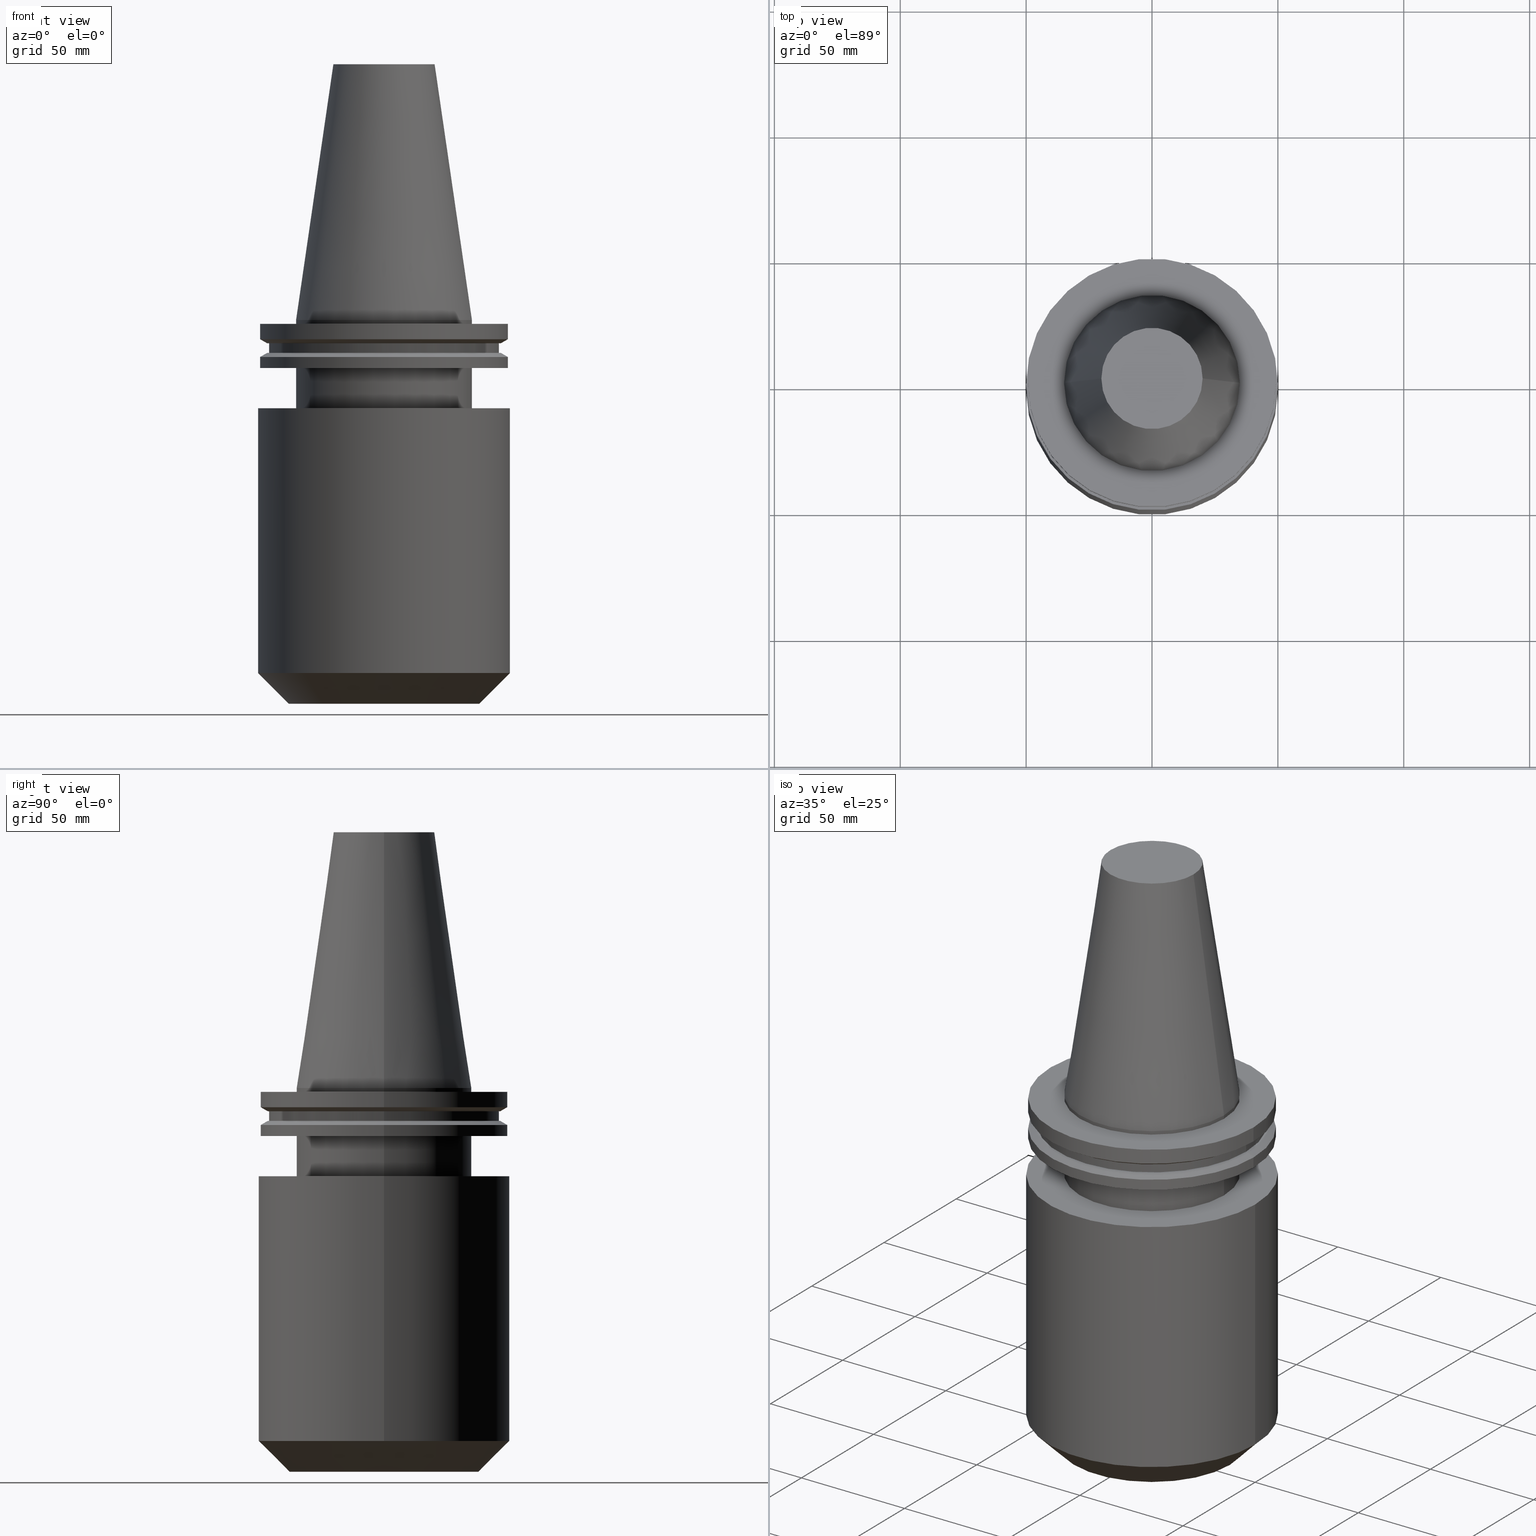
[diagram: canonical four-view strip — front | top / right | iso, engineering-drawing reading convention]
A machine part, canonical four-view strip (front | top / right | iso — engineering-drawing reading convention). The complete STEP part file that produces these views, byte-faithful:
ISO-10303-21;
HEADER;
FILE_DESCRIPTION (( 'STEP AP203' ),
    '1' );
FILE_NAME ('BCV50-EM2_500-6.stp',
    '2022-03-03T16:49:13',
    ( '' ),
    ( '' ),
    'SwSTEP 2.0',
    'SolidWorks 2021',
    '' );
FILE_SCHEMA (( 'CONFIG_CONTROL_DESIGN' ));
ENDSEC;

DATA;
#1 = ORIENTED_EDGE ( 'NONE', *, *, #408, .F. ) ;
#2 = CC_DESIGN_DATE_AND_TIME_ASSIGNMENT ( #523, #399, ( #538 ) ) ;
#3 = DIRECTION ( 'NONE',  ( 1.000000000000000000, 0.000000000000000000, 0.000000000000000000 ) ) ;
#4 = CARTESIAN_POINT ( 'NONE',  ( 0.000000000000000000, 0.000000000000000000, 101.5999999999999943 ) ) ;
#5 = APPROVAL_ROLE ( '' ) ;
#6 = EDGE_CURVE ( 'NONE', #101, #288, #314, .T. ) ;
#7 = DIRECTION ( 'NONE',  ( 1.000000000000000000, 0.000000000000000000, 0.000000000000000000 ) ) ;
#8 = AXIS2_PLACEMENT_3D ( 'NONE', #68, #146, #597 ) ;
#9 = ADVANCED_FACE ( 'NONE', ( #178, #435 ), #440, .F. ) ;
#10 = FACE_OUTER_BOUND ( 'NONE', #398, .T. ) ;
#11 = ORIENTED_EDGE ( 'NONE', *, *, #341, .T. ) ;
#12 = PERSON_AND_ORGANIZATION ( #529, #256 ) ;
#13 = LINE ( 'NONE', #524, #850 ) ;
#14 = CC_DESIGN_DATE_AND_TIME_ASSIGNMENT ( #278, #539, ( #550 ) ) ;
#15 = EDGE_LOOP ( 'NONE', ( #480, #203 ) ) ;
#16 = COORDINATED_UNIVERSAL_TIME_OFFSET ( 6, 0, .BEHIND. ) ;
#17 = DIRECTION ( 'NONE',  ( -1.000000000000000000, 0.000000000000000000, 0.000000000000000000 ) ) ;
#18 = VERTEX_POINT ( 'NONE', #847 ) ;
#19 = ADVANCED_FACE ( 'NONE', ( #235 ), #34, .T. ) ;
#20 = DIRECTION ( 'NONE',  ( -0.000000000000000000, -0.000000000000000000, 1.000000000000000000 ) ) ;
#21 = CIRCLE ( 'NONE', #547, 34.92499999999999005 ) ;
#22 = AXIS2_PLACEMENT_3D ( 'NONE', #792, #74, #729 ) ;
#23 = ORIENTED_EDGE ( 'NONE', *, *, #627, .F. ) ;
#24 = ORIENTED_EDGE ( 'NONE', *, *, #826, .F. ) ;
#25 = CC_DESIGN_APPROVAL ( #551, ( #550 ) ) ;
#26 = CARTESIAN_POINT ( 'NONE',  ( 0.000000000000000000, 0.000000000000000000, 101.5999999999999943 ) ) ;
#27 = ORIENTED_EDGE ( 'NONE', *, *, #627, .T. ) ;
#28 = ORIENTED_EDGE ( 'NONE', *, *, #431, .F. ) ;
#29 = EDGE_CURVE ( 'NONE', #647, #828, #476, .T. ) ;
#30 = CARTESIAN_POINT ( 'NONE',  ( 0.000000000000000000, 0.000000000000000000, -13.05499999999999794 ) ) ;
#31 = VERTEX_POINT ( 'NONE', #128 ) ;
#32 = DIRECTION ( 'NONE',  ( 1.000000000000000000, 0.000000000000000000, 0.000000000000000000 ) ) ;
#33 = ADVANCED_FACE ( 'NONE', ( #574, #53 ), #831, .F. ) ;
#34 = CONICAL_SURFACE ( 'NONE', #750, 46.43919780457007818, 1.047197551196575205 ) ;
#35 = ORIENTED_EDGE ( 'NONE', *, *, #786, .T. ) ;
#36 = ORIENTED_EDGE ( 'NONE', *, *, #602, .F. ) ;
#37 = AXIS2_PLACEMENT_3D ( 'NONE', #543, #298, #818 ) ;
#38 = FACE_OUTER_BOUND ( 'NONE', #743, .T. ) ;
#39 = ORIENTED_EDGE ( 'NONE', *, *, #73, .T. ) ;
#40 = CARTESIAN_POINT ( 'NONE',  ( 45.64500000000000313, 0.000000000000000000, -13.05499999999999794 ) ) ;
#41 = ORIENTED_EDGE ( 'NONE', *, *, #249, .T. ) ;
#42 = DIRECTION ( 'NONE',  ( 0.000000000000000000, 0.000000000000000000, -1.000000000000000000 ) ) ;
#43 = ADVANCED_FACE ( 'NONE', ( #632 ), #488, .T. ) ;
#44 = DIRECTION ( 'NONE',  ( 0.000000000000000000, 0.000000000000000000, -1.000000000000000000 ) ) ;
#45 = FACE_OUTER_BOUND ( 'NONE', #814, .T. ) ;
#46 = DIRECTION ( 'NONE',  ( 1.000000000000000000, 0.000000000000000000, 0.000000000000000000 ) ) ;
#47 = CLOSED_SHELL ( 'NONE', ( #220, #365, #287, #790, #717, #19, #319, #43, #586, #243, #643, #337, #154, #616, #838, #143, #573, #215, #645, #765, #842, #370, #360, #139, #772, #377, #33, #156, #9, #505 ) ) ;
#48 = EDGE_CURVE ( 'NONE', #131, #289, #486, .T. ) ;
#49 = CIRCLE ( 'NONE', #822, 20.10819343178871321 ) ;
#50 = CIRCLE ( 'NONE', #152, 45.64500000000000313 ) ;
#51 = CARTESIAN_POINT ( 'NONE',  ( 0.000000000000000000, 0.000000000000000000, 101.5999999999999943 ) ) ;
#52 = DIRECTION ( 'NONE',  ( 1.000000000000000000, 0.000000000000000000, 0.000000000000000000 ) ) ;
#53 = FACE_BOUND ( 'NONE', #621, .T. ) ;
#54 = DIRECTION ( 'NONE',  ( -0.000000000000000000, -0.000000000000000000, 1.000000000000000000 ) ) ;
#55 = CARTESIAN_POINT ( 'NONE',  ( 0.000000000000000000, 0.000000000000000000, 0.000000000000000000 ) ) ;
#56 = VERTEX_POINT ( 'NONE', #375 ) ;
#57 = CARTESIAN_POINT ( 'NONE',  ( 0.000000000000000000, 0.000000000000000000, 0.000000000000000000 ) ) ;
#58 = DIRECTION ( 'NONE',  ( -0.000000000000000000, -0.000000000000000000, 1.000000000000000000 ) ) ;
#59 = EDGE_CURVE ( 'NONE', #760, #170, #780, .T. ) ;
#60 = CARTESIAN_POINT ( 'NONE',  ( -34.92499999999999005, 4.277078946022130098E-15, -1.499999999999987566 ) ) ;
#61 = VERTEX_POINT ( 'NONE', #504 ) ;
#62 = AXIS2_PLACEMENT_3D ( 'NONE', #372, #490, #252 ) ;
#63 = CARTESIAN_POINT ( 'NONE',  ( 0.000000000000000000, 0.000000000000000000, -152.4000000000000057 ) ) ;
#64 = APPROVAL_PERSON_ORGANIZATION ( #589, #701, #5 ) ;
#65 = DIRECTION ( 'NONE',  ( -0.000000000000000000, -0.000000000000000000, 1.000000000000000000 ) ) ;
#66 = ORIENTED_EDGE ( 'NONE', *, *, #400, .F. ) ;
#67 = CALENDAR_DATE ( 2022, 3, 3 ) ;
#68 = CARTESIAN_POINT ( 'NONE',  ( 0.000000000000000000, 0.000000000000000000, -152.4000000000000057 ) ) ;
#69 = CARTESIAN_POINT ( 'NONE',  ( 0.000000000000000000, 20.10819343178871321, 101.5999999999999943 ) ) ;
#70 = VERTEX_POINT ( 'NONE', #302 ) ;
#71 = EDGE_CURVE ( 'NONE', #332, #101, #515, .T. ) ;
#72 = PERSON_AND_ORGANIZATION_ROLE ( 'creator' ) ;
#73 = EDGE_CURVE ( 'NONE', #674, #31, #623, .T. ) ;
#74 = DIRECTION ( 'NONE',  ( -0.000000000000000000, -0.000000000000000000, 1.000000000000000000 ) ) ;
#75 = DIRECTION ( 'NONE',  ( 1.000000000000000000, 0.000000000000000000, 0.000000000000000000 ) ) ;
#76 = SECURITY_CLASSIFICATION_LEVEL ( 'unclassified' ) ;
#77 = CIRCLE ( 'NONE', #318, 49.21499999999998920 ) ;
#78 = DIRECTION ( 'NONE',  ( -0.000000000000000000, -0.000000000000000000, 1.000000000000000000 ) ) ;
#79 = AXIS2_PLACEMENT_3D ( 'NONE', #482, #540, #32 ) ;
#80 = AXIS2_PLACEMENT_3D ( 'NONE', #429, #315, #559 ) ;
#81 = CARTESIAN_POINT ( 'NONE',  ( 0.000000000000000000, 0.000000000000000000, -13.05499999999999794 ) ) ;
#82 = ORIENTED_EDGE ( 'NONE', *, *, #673, .F. ) ;
#83 = CARTESIAN_POINT ( 'NONE',  ( 0.000000000000000000, 0.000000000000000000, -14.65761014474876944 ) ) ;
#84 = ORIENTED_EDGE ( 'NONE', *, *, #531, .T. ) ;
#85 = DIRECTION ( 'NONE',  ( -0.000000000000000000, -0.000000000000000000, 1.000000000000000000 ) ) ;
#86 = ORIENTED_EDGE ( 'NONE', *, *, #71, .T. ) ;
#87 = ORIENTED_EDGE ( 'NONE', *, *, #386, .T. ) ;
#88 = CARTESIAN_POINT ( 'NONE',  ( 0.000000000000000000, 0.000000000000000000, -140.2000000000000171 ) ) ;
#89 = AXIS2_PLACEMENT_3D ( 'NONE', #4, #202, #794 ) ;
#90 = CIRCLE ( 'NONE', #22, 49.21499999999998920 ) ;
#91 = EDGE_CURVE ( 'NONE', #552, #546, #191, .T. ) ;
#92 = AXIS2_PLACEMENT_3D ( 'NONE', #51, #193, #629 ) ;
#93 = ORIENTED_EDGE ( 'NONE', *, *, #29, .F. ) ;
#94 = VERTEX_POINT ( 'NONE', #60 ) ;
#95 = CARTESIAN_POINT ( 'NONE',  ( 0.000000000000000000, 0.000000000000000000, 0.000000000000000000 ) ) ;
#96 = ORIENTED_EDGE ( 'NONE', *, *, #48, .T. ) ;
#97 = ORIENTED_EDGE ( 'NONE', *, *, #746, .F. ) ;
#98 = EDGE_CURVE ( 'NONE', #757, #94, #21, .T. ) ;
#99 = DIRECTION ( 'NONE',  ( -0.000000000000000000, -0.000000000000000000, 1.000000000000000000 ) ) ;
#100 = EDGE_CURVE ( 'NONE', #18, #418, #173, .T. ) ;
#101 = VERTEX_POINT ( 'NONE', #147 ) ;
#102 = ORIENTED_EDGE ( 'NONE', *, *, #676, .F. ) ;
#103 = EDGE_CURVE ( 'NONE', #785, #828, #323, .T. ) ;
#104 = FACE_OUTER_BOUND ( 'NONE', #773, .T. ) ;
#105 = ORIENTED_EDGE ( 'NONE', *, *, #468, .T. ) ;
#106 = ORIENTED_EDGE ( 'NONE', *, *, #656, .T. ) ;
#107 = AXIS2_PLACEMENT_3D ( 'NONE', #688, #99, #286 ) ;
#108 = AXIS2_PLACEMENT_3D ( 'NONE', #30, #554, #224 ) ;
#109 = DIRECTION ( 'NONE',  ( -0.000000000000000000, -0.000000000000000000, 1.000000000000000000 ) ) ;
#110 = EDGE_CURVE ( 'NONE', #289, #157, #268, .T. ) ;
#111 = VERTEX_POINT ( 'NONE', #259 ) ;
#112 = CARTESIAN_POINT ( 'NONE',  ( 34.92499999999999005, 0.000000000000000000, -1.499999999999987566 ) ) ;
#113 = CARTESIAN_POINT ( 'NONE',  ( 0.000000000000000000, 0.000000000000000000, 0.000000000000000000 ) ) ;
#114 = ORIENTED_EDGE ( 'NONE', *, *, #514, .T. ) ;
#115 = ORIENTED_EDGE ( 'NONE', *, *, #650, .F. ) ;
#116 = FACE_OUTER_BOUND ( 'NONE', #661, .T. ) ;
#117 = DIRECTION ( 'NONE',  ( -1.000000000000000000, 0.000000000000000000, 0.000000000000000000 ) ) ;
#118 = DIRECTION ( 'NONE',  ( -0.000000000000000000, -0.000000000000000000, 1.000000000000000000 ) ) ;
#119 = VECTOR ( 'NONE', #700, 1000.000000000000000 ) ;
#120 = VECTOR ( 'NONE', #78, 1000.000000000000000 ) ;
#121 = AXIS2_PLACEMENT_3D ( 'NONE', #172, #471, #825 ) ;
#122 = CARTESIAN_POINT ( 'NONE',  ( -34.92499999999999716, 4.277078946022130887E-15, 101.5999999999999943 ) ) ;
#123 = DIRECTION ( 'NONE',  ( 1.000000000000000000, 0.000000000000000000, 0.000000000000000000 ) ) ;
#124 = EDGE_LOOP ( 'NONE', ( #344, #218, #409, #97 ) ) ;
#125 = DIRECTION ( 'NONE',  ( 0.000000000000000000, -0.000000000000000000, 1.000000000000000000 ) ) ;
#126 = DIRECTION ( 'NONE',  ( -0.1443082272672999988, 0.000000000000000000, -0.9895327864921755756 ) ) ;
#127 = CARTESIAN_POINT ( 'NONE',  ( 0.000000000000000000, 0.000000000000000000, 0.000000000000000000 ) ) ;
#128 = CARTESIAN_POINT ( 'NONE',  ( -49.21499999999999631, 6.027099222003697826E-15, -1.499999999999987566 ) ) ;
#129 = CARTESIAN_POINT ( 'NONE',  ( 0.000000000000000000, 0.000000000000000000, -9.204999999999991189 ) ) ;
#130 = FACE_OUTER_BOUND ( 'NONE', #448, .T. ) ;
#131 = VERTEX_POINT ( 'NONE', #397 ) ;
#132 = AXIS2_PLACEMENT_3D ( 'NONE', #852, #584, #273 ) ;
#133 = APPROVAL_ROLE ( '' ) ;
#134 = VECTOR ( 'NONE', #500, 1000.000000000000114 ) ;
#135 = AXIS2_PLACEMENT_3D ( 'NONE', #127, #190, #443 ) ;
#136 = CARTESIAN_POINT ( 'NONE',  ( 34.92499999999999005, 4.277078946022130098E-15, 0.000000000000000000 ) ) ;
#137 = AXIS2_PLACEMENT_3D ( 'NONE', #436, #44, #706 ) ;
#138 = CARTESIAN_POINT ( 'NONE',  ( 34.92499999999999716, 0.000000000000000000, -35.04999999999999716 ) ) ;
#139 = ADVANCED_FACE ( 'NONE', ( #130 ), #266, .T. ) ;
#140 = ORIENTED_EDGE ( 'NONE', *, *, #98, .F. ) ;
#141 = DIRECTION ( 'NONE',  ( -0.000000000000000000, -0.000000000000000000, 1.000000000000000000 ) ) ;
#142 = CARTESIAN_POINT ( 'NONE',  ( 45.64500000000000313, 0.000000000000000000, -9.204999999999991189 ) ) ;
#143 = ADVANCED_FACE ( 'NONE', ( #459 ), #387, .T. ) ;
#144 = ORIENTED_EDGE ( 'NONE', *, *, #460, .F. ) ;
#145 = PERSON_AND_ORGANIZATION_ROLE ( 'design_supplier' ) ;
#146 = DIRECTION ( 'NONE',  ( -0.000000000000000000, -0.000000000000000000, 1.000000000000000000 ) ) ;
#147 = CARTESIAN_POINT ( 'NONE',  ( 46.43919780457007818, 5.857130358318725715E-15, -13.05499999999999794 ) ) ;
#148 = ORIENTED_EDGE ( 'NONE', *, *, #676, .T. ) ;
#149 = CALENDAR_DATE ( 2022, 3, 3 ) ;
#150 = CARTESIAN_POINT ( 'NONE',  ( 34.92499999999999005, 0.000000000000000000, 101.5999999999999943 ) ) ;
#151 = AXIS2_PLACEMENT_3D ( 'NONE', #815, #421, #356 ) ;
#152 = AXIS2_PLACEMENT_3D ( 'NONE', #535, #680, #611 ) ;
#153 = EDGE_LOOP ( 'NONE', ( #618, #310 ) ) ;
#154 = ADVANCED_FACE ( 'NONE', ( #855 ), #507, .F. ) ;
#155 = CARTESIAN_POINT ( 'NONE',  ( -45.64500000000000313, 5.589900314708094957E-15, 101.5999999999999943 ) ) ;
#156 = ADVANCED_FACE ( 'NONE', ( #195 ), #205, .F. ) ;
#157 = VERTEX_POINT ( 'NONE', #579 ) ;
#158 = DIRECTION ( 'NONE',  ( -0.000000000000000000, -0.000000000000000000, 1.000000000000000000 ) ) ;
#159 = VERTEX_POINT ( 'NONE', #450 ) ;
#160 = ORIENTED_EDGE ( 'NONE', *, *, #73, .F. ) ;
#161 = CALENDAR_DATE ( 2022, 3, 3 ) ;
#162 = FACE_OUTER_BOUND ( 'NONE', #472, .T. ) ;
#163 = AXIS2_PLACEMENT_3D ( 'NONE', #307, #705, #833 ) ;
#164 = AXIS2_PLACEMENT_3D ( 'NONE', #510, #210, #590 ) ;
#165 = AXIS2_PLACEMENT_3D ( 'NONE', #57, #189, #257 ) ;
#166 = ORIENTED_EDGE ( 'NONE', *, *, #71, .F. ) ;
#167 = EDGE_LOOP ( 'NONE', ( #115, #714 ) ) ;
#168 = DIRECTION ( 'NONE',  ( -0.000000000000000000, -0.000000000000000000, 1.000000000000000000 ) ) ;
#169 = ORIENTED_EDGE ( 'NONE', *, *, #489, .T. ) ;
#170 = VERTEX_POINT ( 'NONE', #142 ) ;
#171 = CARTESIAN_POINT ( 'NONE',  ( -45.64500000000000313, 5.589900314708094957E-15, -13.05499999999999794 ) ) ;
#172 = CARTESIAN_POINT ( 'NONE',  ( 0.000000000000000000, 0.000000000000000000, 101.5999999999999943 ) ) ;
#173 = CIRCLE ( 'NONE', #819, 34.92499999999999716 ) ;
#174 = DIRECTION ( 'NONE',  ( 1.000000000000000000, 0.000000000000000000, 0.000000000000000000 ) ) ;
#175 = CIRCLE ( 'NONE', #135, 34.92499999999999005 ) ;
#176 = LINE ( 'NONE', #699, #376 ) ;
#177 = DIRECTION ( 'NONE',  ( -0.000000000000000000, -0.000000000000000000, 1.000000000000000000 ) ) ;
#178 = FACE_BOUND ( 'NONE', #15, .T. ) ;
#179 = DIRECTION ( 'NONE',  ( 0.000000000000000000, 0.000000000000000000, -1.000000000000000000 ) ) ;
#180 = DIRECTION ( 'NONE',  ( 1.000000000000000000, 0.000000000000000000, 0.000000000000000000 ) ) ;
#181 = CC_DESIGN_PERSON_AND_ORGANIZATION_ASSIGNMENT ( #732, #145, ( #724 ) ) ;
#182 = EDGE_LOOP ( 'NONE', ( #727, #739, #679, #233 ) ) ;
#183 = CYLINDRICAL_SURFACE ( 'NONE', #165, 49.99999999999999289 ) ;
#184 = DIRECTION ( 'NONE',  ( -0.000000000000000000, -0.000000000000000000, 1.000000000000000000 ) ) ;
#185 = ORIENTED_EDGE ( 'NONE', *, *, #684, .T. ) ;
#186 = EDGE_CURVE ( 'NONE', #760, #689, #849, .T. ) ;
#187 = AXIS2_PLACEMENT_3D ( 'NONE', #292, #158, #685 ) ;
#188 = APPROVAL_PERSON_ORGANIZATION ( #223, #551, #758 ) ;
#189 = DIRECTION ( 'NONE',  ( -0.000000000000000000, -0.000000000000000000, 1.000000000000000000 ) ) ;
#190 = DIRECTION ( 'NONE',  ( -0.000000000000000000, -0.000000000000000000, 1.000000000000000000 ) ) ;
#191 = LINE ( 'NONE', #444, #560 ) ;
#192 = EDGE_CURVE ( 'NONE', #536, #157, #788, .T. ) ;
#193 = DIRECTION ( 'NONE',  ( -0.000000000000000000, -0.000000000000000000, 1.000000000000000000 ) ) ;
#194 = DIRECTION ( 'NONE',  ( -0.000000000000000000, -0.000000000000000000, 1.000000000000000000 ) ) ;
#195 = FACE_OUTER_BOUND ( 'NONE', #585, .T. ) ;
#196 = ORIENTED_EDGE ( 'NONE', *, *, #341, .F. ) ;
#197 = LINE ( 'NONE', #520, #491 ) ;
#198 = DIRECTION ( 'NONE',  ( 1.000000000000000000, 0.000000000000000000, 0.000000000000000000 ) ) ;
#199 = APPLICATION_PROTOCOL_DEFINITION ( 'international standard', 'config_control_design', 1994, #677 ) ;
#200 = AXIS2_PLACEMENT_3D ( 'NONE', #382, #58, #716 ) ;
#201 = CARTESIAN_POINT ( 'NONE',  ( -34.92499999999999716, 4.277078946022130887E-15, -19.04999999999999716 ) ) ;
#202 = DIRECTION ( 'NONE',  ( -0.000000000000000000, -0.000000000000000000, 1.000000000000000000 ) ) ;
#203 = ORIENTED_EDGE ( 'NONE', *, *, #755, .T. ) ;
#204 = DIRECTION ( 'NONE',  ( -0.000000000000000000, -0.000000000000000000, 1.000000000000000000 ) ) ;
#205 = CYLINDRICAL_SURFACE ( 'NONE', #606, 31.74999999999999289 ) ;
#206 = PERSON_AND_ORGANIZATION ( #529, #256 ) ;
#207 = DIRECTION ( 'NONE',  ( 0.7071067811865482389, 0.000000000000000000, 0.7071067811865469066 ) ) ;
#208 = ORIENTED_EDGE ( 'NONE', *, *, #400, .T. ) ;
#209 = AXIS2_PLACEMENT_3D ( 'NONE', #783, #177, #52 ) ;
#210 = DIRECTION ( 'NONE',  ( -0.000000000000000000, -0.000000000000000000, 1.000000000000000000 ) ) ;
#211 = AXIS2_PLACEMENT_3D ( 'NONE', #63, #258, #843 ) ;
#212 = AXIS2_PLACEMENT_3D ( 'NONE', #620, #549, #216 ) ;
#213 = VERTEX_POINT ( 'NONE', #138 ) ;
#214 = ORIENTED_EDGE ( 'NONE', *, *, #572, .T. ) ;
#215 = ADVANCED_FACE ( 'NONE', ( #317, #10 ), #592, .F. ) ;
#216 = DIRECTION ( 'NONE',  ( 1.000000000000000000, 0.000000000000000000, 0.000000000000000000 ) ) ;
#217 = ORIENTED_EDGE ( 'NONE', *, *, #489, .F. ) ;
#218 = ORIENTED_EDGE ( 'NONE', *, *, #6, .T. ) ;
#219 = DIRECTION ( 'NONE',  ( -0.000000000000000000, -0.000000000000000000, 1.000000000000000000 ) ) ;
#220 = ADVANCED_FACE ( 'NONE', ( #327 ), #799, .F. ) ;
#221 = ORIENTED_EDGE ( 'NONE', *, *, #755, .F. ) ;
#222 = ORIENTED_EDGE ( 'NONE', *, *, #544, .F. ) ;
#223 = PERSON_AND_ORGANIZATION ( #529, #256 ) ;
#224 = DIRECTION ( 'NONE',  ( 1.000000000000000000, 0.000000000000000000, 0.000000000000000000 ) ) ;
#225 = AXIS2_PLACEMENT_3D ( 'NONE', #113, #708, #123 ) ;
#226 = CC_DESIGN_PERSON_AND_ORGANIZATION_ASSIGNMENT ( #658, #72, ( #538 ) ) ;
#227 = AXIS2_PLACEMENT_3D ( 'NONE', #449, #204, #666 ) ;
#228 = CONICAL_SURFACE ( 'NONE', #441, 46.43919780457007818, 1.047197551196575205 ) ;
#229 = EDGE_LOOP ( 'NONE', ( #232, #594, #41, #291 ) ) ;
#230 = EDGE_LOOP ( 'NONE', ( #28, #105, #324, #217 ) ) ;
#231 = CARTESIAN_POINT ( 'NONE',  ( 49.21500000000000341, 0.000000000000000000, -7.602389855251287187 ) ) ;
#232 = ORIENTED_EDGE ( 'NONE', *, *, #423, .F. ) ;
#233 = ORIENTED_EDGE ( 'NONE', *, *, #249, .F. ) ;
#234 = CARTESIAN_POINT ( 'NONE',  ( 0.000000000000000000, 0.000000000000000000, -19.04999999999999716 ) ) ;
#235 = FACE_OUTER_BOUND ( 'NONE', #182, .T. ) ;
#236 = EDGE_CURVE ( 'NONE', #689, #760, #254, .T. ) ;
#237 = CARTESIAN_POINT ( 'NONE',  ( 49.99999999999998579, 0.000000000000000000, -35.04999999999999716 ) ) ;
#238 = CARTESIAN_POINT ( 'NONE',  ( 49.21499999999998920, 0.000000000000000000, -14.65761014474876944 ) ) ;
#239 = AXIS2_PLACEMENT_3D ( 'NONE', #81, #338, #430 ) ;
#240 = CIRCLE ( 'NONE', #107, 49.21500000000000341 ) ;
#241 = DIRECTION ( 'NONE',  ( 0.1443082272672999988, 1.767266086135277066E-17, -0.9895327864921755756 ) ) ;
#242 = CIRCLE ( 'NONE', #452, 49.21499999999998920 ) ;
#243 = ADVANCED_FACE ( 'NONE', ( #767 ), #248, .T. ) ;
#244 = FACE_OUTER_BOUND ( 'NONE', #816, .T. ) ;
#245 = CARTESIAN_POINT ( 'NONE',  ( 0.000000000000000000, 0.000000000000000000, -14.65761014474876944 ) ) ;
#246 = DIRECTION ( 'NONE',  ( 1.000000000000000000, 0.000000000000000000, 0.000000000000000000 ) ) ;
#247 = LINE ( 'NONE', #774, #350 ) ;
#248 = CYLINDRICAL_SURFACE ( 'NONE', #577, 34.92499999999999716 ) ;
#249 = EDGE_CURVE ( 'NONE', #61, #607, #562, .T. ) ;
#250 = EDGE_LOOP ( 'NONE', ( #411, #87 ) ) ;
#251 = LINE ( 'NONE', #494, #391 ) ;
#252 = DIRECTION ( 'NONE',  ( 1.000000000000000000, 0.000000000000000000, 0.000000000000000000 ) ) ;
#253 = DIRECTION ( 'NONE',  ( -1.000000000000000000, 0.000000000000000000, -0.000000000000000000 ) ) ;
#254 = CIRCLE ( 'NONE', #239, 45.64500000000000313 ) ;
#255 = VECTOR ( 'NONE', #806, 1000.000000000000000 ) ;
#256 = ORGANIZATION ( 'UNSPECIFIED', 'UNSPECIFIED', '' ) ;
#257 = DIRECTION ( 'NONE',  ( 1.000000000000000000, 0.000000000000000000, 0.000000000000000000 ) ) ;
#258 = DIRECTION ( 'NONE',  ( -0.000000000000000000, -0.000000000000000000, 1.000000000000000000 ) ) ;
#259 = CARTESIAN_POINT ( 'NONE',  ( -34.92499999999999005, 0.000000000000000000, 0.000000000000000000 ) ) ;
#260 = VERTEX_POINT ( 'NONE', #576 ) ;
#261 = DIRECTION ( 'NONE',  ( 0.000000000000000000, 0.000000000000000000, 1.000000000000000000 ) ) ;
#262 = EDGE_CURVE ( 'NONE', #607, #512, #791, .T. ) ;
#263 = DIRECTION ( 'NONE',  ( -0.000000000000000000, -0.000000000000000000, 1.000000000000000000 ) ) ;
#264 = DIRECTION ( 'NONE',  ( 1.000000000000000000, 0.000000000000000000, 0.000000000000000000 ) ) ;
#265 = LINE ( 'NONE', #513, #255 ) ;
#266 = CYLINDRICAL_SURFACE ( 'NONE', #132, 34.92499999999999005 ) ;
#267 = ORIENTED_EDGE ( 'NONE', *, *, #737, .T. ) ;
#268 = CIRCLE ( 'NONE', #373, 31.74999999999999289 ) ;
#269 = DATE_AND_TIME ( #453, #641 ) ;
#270 = AXIS2_PLACEMENT_3D ( 'NONE', #651, #568, #653 ) ;
#271 = LOCAL_TIME ( 10, 49, 13.00000000000000000, #553 ) ;
#272 = LINE ( 'NONE', #458, #694 ) ;
#273 = DIRECTION ( 'NONE',  ( 1.000000000000000000, 0.000000000000000000, 0.000000000000000000 ) ) ;
#274 = ORIENTED_EDGE ( 'NONE', *, *, #335, .F. ) ;
#275 = CARTESIAN_POINT ( 'NONE',  ( 0.000000000000000000, 0.000000000000000000, -152.4000000000000057 ) ) ;
#276 = DESIGN_CONTEXT ( 'detailed design', #528, 'design' ) ;
#277 = ORIENTED_EDGE ( 'NONE', *, *, #803, .T. ) ;
#278 = DATE_AND_TIME ( #149, #349 ) ;
#279 = FACE_OUTER_BOUND ( 'NONE', #809, .T. ) ;
#280 = ORIENTED_EDGE ( 'NONE', *, *, #740, .T. ) ;
#281 = AXIS2_PLACEMENT_3D ( 'NONE', #55, #305, #117 ) ;
#282 = DIRECTION ( 'NONE',  ( 1.000000000000000000, 0.000000000000000000, 0.000000000000000000 ) ) ;
#283 = VECTOR ( 'NONE', #832, 1000.000000000000000 ) ;
#284 = ORIENTED_EDGE ( 'NONE', *, *, #812, .F. ) ;
#285 = APPROVAL_STATUS ( 'not_yet_approved' ) ;
#286 = DIRECTION ( 'NONE',  ( 1.000000000000000000, 0.000000000000000000, 0.000000000000000000 ) ) ;
#287 = ADVANCED_FACE ( 'NONE', ( #316 ), #704, .T. ) ;
#288 = VERTEX_POINT ( 'NONE', #238 ) ;
#289 = VERTEX_POINT ( 'NONE', #322 ) ;
#290 = DIRECTION ( 'NONE',  ( -0.000000000000000000, -0.000000000000000000, 1.000000000000000000 ) ) ;
#291 = ORIENTED_EDGE ( 'NONE', *, *, #631, .F. ) ;
#292 = CARTESIAN_POINT ( 'NONE',  ( 0.000000000000000000, 0.000000000000000000, -9.204999999999991189 ) ) ;
#293 = AXIS2_PLACEMENT_3D ( 'NONE', #565, #558, #253 ) ;
#294 = CIRCLE ( 'NONE', #533, 50.00000000000000000 ) ;
#295 = CC_DESIGN_APPROVAL ( #303, ( #538 ) ) ;
#296 = EDGE_LOOP ( 'NONE', ( #221, #628, #795, #353 ) ) ;
#297 = ORIENTED_EDGE ( 'NONE', *, *, #394, .T. ) ;
#298 = DIRECTION ( 'NONE',  ( -0.000000000000000000, -0.000000000000000000, 1.000000000000000000 ) ) ;
#299 = VERTEX_POINT ( 'NONE', #385 ) ;
#300 = CARTESIAN_POINT ( 'NONE',  ( 50.00000000000000000, 0.000000000000000000, -140.2000000000000171 ) ) ;
#301 = ORIENTED_EDGE ( 'NONE', *, *, #514, .F. ) ;
#302 = CARTESIAN_POINT ( 'NONE',  ( -20.10819343178871321, 0.000000000000000000, 101.5999999999999801 ) ) ;
#303 = APPROVAL ( #720, 'UNSPECIFIED' ) ;
#304 = DIRECTION ( 'NONE',  ( -0.7071067811865482389, 8.659560562354941486E-17, 0.7071067811865469066 ) ) ;
#305 = DIRECTION ( 'NONE',  ( 0.000000000000000000, 0.000000000000000000, -1.000000000000000000 ) ) ;
#306 = VECTOR ( 'NONE', #405, 1000.000000000000000 ) ;
#307 = CARTESIAN_POINT ( 'NONE',  ( 0.000000000000000000, 0.000000000000000000, -13.05499999999999794 ) ) ;
#308 = CARTESIAN_POINT ( 'NONE',  ( -34.92499999999999005, 0.000000000000000000, 0.000000000000000000 ) ) ;
#309 = PLANE ( 'NONE',  #270 ) ;
#310 = ORIENTED_EDGE ( 'NONE', *, *, #673, .T. ) ;
#311 = ORIENTED_EDGE ( 'NONE', *, *, #631, .T. ) ;
#312 = FACE_OUTER_BOUND ( 'NONE', #358, .T. ) ;
#313 = FACE_OUTER_BOUND ( 'NONE', #664, .T. ) ;
#314 = LINE ( 'NONE', #635, #134 ) ;
#315 = DIRECTION ( 'NONE',  ( 0.000000000000000000, -0.000000000000000000, 1.000000000000000000 ) ) ;
#316 = FACE_OUTER_BOUND ( 'NONE', #351, .T. ) ;
#317 = FACE_BOUND ( 'NONE', #719, .T. ) ;
#318 = AXIS2_PLACEMENT_3D ( 'NONE', #245, #194, #851 ) ;
#319 = ADVANCED_FACE ( 'NONE', ( #45 ), #498, .T. ) ;
#320 = CIRCLE ( 'NONE', #8, 37.79999999999999005 ) ;
#321 = AXIS2_PLACEMENT_3D ( 'NONE', #497, #179, #445 ) ;
#322 = CARTESIAN_POINT ( 'NONE',  ( -31.74999999999999289, 3.888253587292845687E-15, -35.04999999999999716 ) ) ;
#323 = LINE ( 'NONE', #654, #438 ) ;
#324 = ORIENTED_EDGE ( 'NONE', *, *, #761, .T. ) ;
#325 = DIRECTION ( 'NONE',  ( 1.000000000000000000, 0.000000000000000000, 0.000000000000000000 ) ) ;
#326 = FACE_OUTER_BOUND ( 'NONE', #542, .T. ) ;
#327 = FACE_OUTER_BOUND ( 'NONE', #612, .T. ) ;
#328 = ORIENTED_EDGE ( 'NONE', *, *, #798, .T. ) ;
#329 = COORDINATED_UNIVERSAL_TIME_OFFSET ( 6, 0, .BEHIND. ) ;
#330 = DIRECTION ( 'NONE',  ( -0.000000000000000000, -0.000000000000000000, 1.000000000000000000 ) ) ;
#331 = DIRECTION ( 'NONE',  ( -0.000000000000000000, -0.000000000000000000, 1.000000000000000000 ) ) ;
#332 = VERTEX_POINT ( 'NONE', #368 ) ;
#333 = PERSON_AND_ORGANIZATION ( #529, #256 ) ;
#334 = AXIS2_PLACEMENT_3D ( 'NONE', #846, #184, #502 ) ;
#335 = EDGE_CURVE ( 'NONE', #288, #808, #77, .T. ) ;
#336 = DIRECTION ( 'NONE',  ( 0.000000000000000000, -0.000000000000000000, 1.000000000000000000 ) ) ;
#337 = ADVANCED_FACE ( 'NONE', ( #634 ), #532, .T. ) ;
#338 = DIRECTION ( 'NONE',  ( -0.000000000000000000, -0.000000000000000000, 1.000000000000000000 ) ) ;
#339 = VERTEX_POINT ( 'NONE', #495 ) ;
#340 = CARTESIAN_POINT ( 'NONE',  ( -49.21500000000000341, 6.027099222003699404E-15, -7.602389855251287187 ) ) ;
#341 = EDGE_CURVE ( 'NONE', #828, #647, #681, .T. ) ;
#342 = ORIENTED_EDGE ( 'NONE', *, *, #656, .F. ) ;
#343 = DIRECTION ( 'NONE',  ( -0.000000000000000000, -0.000000000000000000, 1.000000000000000000 ) ) ;
#344 = ORIENTED_EDGE ( 'NONE', *, *, #684, .F. ) ;
#345 = ORIENTED_EDGE ( 'NONE', *, *, #737, .F. ) ;
#346 = AXIS2_PLACEMENT_3D ( 'NONE', #698, #118, #652 ) ;
#347 = CONICAL_SURFACE ( 'NONE', #683, 34.92499999999999005, 0.1448138465474119452 ) ;
#348 = DIRECTION ( 'NONE',  ( -0.000000000000000000, -0.000000000000000000, 1.000000000000000000 ) ) ;
#349 = LOCAL_TIME ( 10, 49, 13.00000000000000000, #671 ) ;
#350 = VECTOR ( 'NONE', #304, 999.9999999999998863 ) ;
#351 = EDGE_LOOP ( 'NONE', ( #27, #114, #196, #530 ) ) ;
#352 = DIRECTION ( 'NONE',  ( -0.000000000000000000, -0.000000000000000000, 1.000000000000000000 ) ) ;
#353 = ORIENTED_EDGE ( 'NONE', *, *, #798, .F. ) ;
#354 = EDGE_LOOP ( 'NONE', ( #140, #422 ) ) ;
#355 = DATE_AND_TIME ( #161, #271 ) ;
#356 = DIRECTION ( 'NONE',  ( 1.000000000000000000, 0.000000000000000000, 0.000000000000000000 ) ) ;
#357 = ORIENTED_EDGE ( 'NONE', *, *, #236, .T. ) ;
#358 = EDGE_LOOP ( 'NONE', ( #345, #470 ) ) ;
#359 = CARTESIAN_POINT ( 'NONE',  ( 0.000000000000000000, 0.000000000000000000, -9.204999999999991189 ) ) ;
#360 = ADVANCED_FACE ( 'NONE', ( #771, #640 ), #309, .F. ) ;
#361 = AXIS2_PLACEMENT_3D ( 'NONE', #69, #588, #784 ) ;
#362 = AXIS2_PLACEMENT_3D ( 'NONE', #741, #407, #659 ) ;
#363 = LOCAL_TIME ( 10, 49, 13.00000000000000000, #801 ) ;
#364 = ORIENTED_EDGE ( 'NONE', *, *, #186, .F. ) ;
#365 = ADVANCED_FACE ( 'NONE', ( #313 ), #374, .T. ) ;
#366 = ORIENTED_EDGE ( 'NONE', *, *, #455, .T. ) ;
#367 = CARTESIAN_POINT ( 'NONE',  ( -49.21499999999998920, 6.027099222003697037E-15, -19.04999999999999716 ) ) ;
#368 = CARTESIAN_POINT ( 'NONE',  ( -46.43919780457007818, 0.000000000000000000, -13.05499999999999794 ) ) ;
#369 = DIRECTION ( 'NONE',  ( -0.000000000000000000, -0.000000000000000000, 1.000000000000000000 ) ) ;
#370 = ADVANCED_FACE ( 'NONE', ( #571 ), #775, .T. ) ;
#371 = CARTESIAN_POINT ( 'NONE',  ( 34.92499999999999716, 0.000000000000000000, 101.5999999999999943 ) ) ;
#372 = CARTESIAN_POINT ( 'NONE',  ( 0.000000000000000000, 0.000000000000000000, -35.04999999999999716 ) ) ;
#373 = AXIS2_PLACEMENT_3D ( 'NONE', #516, #65, #598 ) ;
#374 = CONICAL_SURFACE ( 'NONE', #211, 37.79999999999999005, 0.7853981633974491672 ) ;
#375 = CARTESIAN_POINT ( 'NONE',  ( -50.00000000000000711, 6.123233995736766874E-15, -140.2000000000000171 ) ) ;
#376 = VECTOR ( 'NONE', #54, 1000.000000000000000 ) ;
#377 = ADVANCED_FACE ( 'NONE', ( #583 ), #477, .T. ) ;
#378 = FACE_BOUND ( 'NONE', #153, .T. ) ;
#379 = DIRECTION ( 'NONE',  ( -0.000000000000000000, -0.000000000000000000, 1.000000000000000000 ) ) ;
#380 = DIRECTION ( 'NONE',  ( -0.000000000000000000, -0.000000000000000000, 1.000000000000000000 ) ) ;
#381 = CARTESIAN_POINT ( 'NONE',  ( 0.000000000000000000, 0.000000000000000000, -152.4000000000000057 ) ) ;
#382 = CARTESIAN_POINT ( 'NONE',  ( 0.000000000000000000, 0.000000000000000000, 101.5999999999999801 ) ) ;
#383 = EDGE_CURVE ( 'NONE', #111, #546, #175, .T. ) ;
#384 = DIRECTION ( 'NONE',  ( -0.000000000000000000, -0.000000000000000000, 1.000000000000000000 ) ) ;
#385 = CARTESIAN_POINT ( 'NONE',  ( -45.64500000000000313, 5.589900314708094957E-15, -9.204999999999991189 ) ) ;
#386 = EDGE_CURVE ( 'NONE', #552, #70, #414, .T. ) ;
#387 = CYLINDRICAL_SURFACE ( 'NONE', #89, 49.21499999999998920 ) ;
#388 = VECTOR ( 'NONE', #384, 1000.000000000000000 ) ;
#389 = EDGE_LOOP ( 'NONE', ( #622, #311, #35, #804 ) ) ;
#390 = AXIS2_PLACEMENT_3D ( 'NONE', #359, #219, #282 ) ;
#391 = VECTOR ( 'NONE', #777, 1000.000000000000000 ) ;
#392 = PERSON_AND_ORGANIZATION_ROLE ( 'design_owner' ) ;
#393 = LINE ( 'NONE', #150, #306 ) ;
#394 = EDGE_CURVE ( 'NONE', #170, #299, #578, .T. ) ;
#395 = CARTESIAN_POINT ( 'NONE',  ( 0.000000000000000000, 45.64500000000000313, -13.05499999999999794 ) ) ;
#396 = CARTESIAN_POINT ( 'NONE',  ( 0.000000000000000000, 34.92499999999999716, -35.04999999999999716 ) ) ;
#397 = CARTESIAN_POINT ( 'NONE',  ( -31.75000000000000000, 3.888253587292846476E-15, -152.4000000000000057 ) ) ;
#398 = EDGE_LOOP ( 'NONE', ( #86, #185 ) ) ;
#399 = DATE_TIME_ROLE ( 'creation_date' ) ;
#400 = EDGE_CURVE ( 'NONE', #94, #111, #265, .T. ) ;
#401 = LINE ( 'NONE', #155, #120 ) ;
#402 = DIRECTION ( 'NONE',  ( -0.000000000000000000, -0.000000000000000000, 1.000000000000000000 ) ) ;
#403 = ORIENTED_EDGE ( 'NONE', *, *, #192, .T. ) ;
#404 = CIRCLE ( 'NONE', #37, 34.92499999999999716 ) ;
#405 = DIRECTION ( 'NONE',  ( -0.000000000000000000, -0.000000000000000000, 1.000000000000000000 ) ) ;
#406 = EDGE_LOOP ( 'NONE', ( #11, #417 ) ) ;
#407 = DIRECTION ( 'NONE',  ( -0.000000000000000000, -0.000000000000000000, 1.000000000000000000 ) ) ;
#408 = EDGE_CURVE ( 'NONE', #159, #339, #320, .T. ) ;
#409 = ORIENTED_EDGE ( 'NONE', *, *, #335, .T. ) ;
#410 = DIRECTION ( 'NONE',  ( 1.000000000000000000, 0.000000000000000000, 0.000000000000000000 ) ) ;
#411 = ORIENTED_EDGE ( 'NONE', *, *, #602, .T. ) ;
#412 = PRODUCT ( 'BCV50-EM2_500-6', 'BCV50-EM2_500-6', '', ( #509 ) ) ;
#413 = AXIS2_PLACEMENT_3D ( 'NONE', #511, #456, #75 ) ;
#414 = CIRCLE ( 'NONE', #200, 20.10819343178871321 ) ;
#415 = CARTESIAN_POINT ( 'NONE',  ( -49.99999999999998579, 6.123233995736765296E-15, -35.04999999999999716 ) ) ;
#416 = PRODUCT_RELATED_PRODUCT_CATEGORY ( 'detail', '', ( #412 ) ) ;
#417 = ORIENTED_EDGE ( 'NONE', *, *, #29, .T. ) ;
#418 = VERTEX_POINT ( 'NONE', #201 ) ;
#419 = DIRECTION ( 'NONE',  ( 1.000000000000000000, 0.000000000000000000, 0.000000000000000000 ) ) ;
#420 = ORIENTED_EDGE ( 'NONE', *, *, #91, .F. ) ;
#421 = DIRECTION ( 'NONE',  ( -0.000000000000000000, -0.000000000000000000, 1.000000000000000000 ) ) ;
#422 = ORIENTED_EDGE ( 'NONE', *, *, #697, .F. ) ;
#423 = EDGE_CURVE ( 'NONE', #508, #512, #733, .T. ) ;
#424 = CYLINDRICAL_SURFACE ( 'NONE', #79, 45.64500000000000313 ) ;
#425 = AXIS2_PLACEMENT_3D ( 'NONE', #734, #402, #667 ) ;
#426 = CONICAL_SURFACE ( 'NONE', #835, 49.21499999999998920, 1.047197551196554333 ) ;
#427 = VECTOR ( 'NONE', #126, 999.9999999999998863 ) ;
#428 = ORIENTED_EDGE ( 'NONE', *, *, #110, .T. ) ;
#429 = CARTESIAN_POINT ( 'NONE',  ( 0.000000000000000000, 49.21499999999998920, -19.04999999999999716 ) ) ;
#430 = DIRECTION ( 'NONE',  ( 1.000000000000000000, 0.000000000000000000, 0.000000000000000000 ) ) ;
#431 = EDGE_CURVE ( 'NONE', #747, #808, #197, .T. ) ;
#432 = CARTESIAN_POINT ( 'NONE',  ( 0.000000000000000000, 31.75000000000000000, -152.4000000000000057 ) ) ;
#433 = FACE_BOUND ( 'NONE', #789, .T. ) ;
#434 = DIRECTION ( 'NONE',  ( 1.000000000000000000, 0.000000000000000000, 0.000000000000000000 ) ) ;
#435 = FACE_OUTER_BOUND ( 'NONE', #406, .T. ) ;
#436 = CARTESIAN_POINT ( 'NONE',  ( 0.000000000000000000, 0.000000000000000000, -35.04999999999999716 ) ) ;
#437 = DIRECTION ( 'NONE',  ( -0.000000000000000000, -0.000000000000000000, 1.000000000000000000 ) ) ;
#438 = VECTOR ( 'NONE', #718, 1000.000000000000000 ) ;
#439 = CIRCLE ( 'NONE', #151, 49.21499999999999631 ) ;
#440 = PLANE ( 'NONE',  #293 ) ;
#441 = AXIS2_PLACEMENT_3D ( 'NONE', #715, #487, #848 ) ;
#442 = DIRECTION ( 'NONE',  ( 1.000000000000000000, 0.000000000000000000, 0.000000000000000000 ) ) ;
#443 = DIRECTION ( 'NONE',  ( 1.000000000000000000, 0.000000000000000000, 0.000000000000000000 ) ) ;
#444 = CARTESIAN_POINT ( 'NONE',  ( 34.92499999999999005, 4.277078946022130098E-15, 0.000000000000000000 ) ) ;
#445 = DIRECTION ( 'NONE',  ( -1.000000000000000000, 0.000000000000000000, 0.000000000000000000 ) ) ;
#446 = CARTESIAN_POINT ( 'NONE',  ( 0.000000000000000000, 0.000000000000000000, -152.4000000000000057 ) ) ;
#447 = CARTESIAN_POINT ( 'NONE',  ( 31.74999999999999289, 0.000000000000000000, 0.000000000000000000 ) ) ;
#448 = EDGE_LOOP ( 'NONE', ( #66, #678, #214, #603 ) ) ;
#449 = CARTESIAN_POINT ( 'NONE',  ( 0.000000000000000000, 0.000000000000000000, -19.04999999999999716 ) ) ;
#450 = CARTESIAN_POINT ( 'NONE',  ( 37.79999999999999005, 0.000000000000000000, -152.4000000000000057 ) ) ;
#451 = AXIS2_PLACEMENT_3D ( 'NONE', #467, #85, #463 ) ;
#452 = AXIS2_PLACEMENT_3D ( 'NONE', #234, #168, #485 ) ;
#453 = CALENDAR_DATE ( 2022, 3, 3 ) ;
#454 = DIRECTION ( 'NONE',  ( -0.8660254037844273833, 1.060575238724893110E-16, 0.5000000000000195399 ) ) ;
#455 = EDGE_CURVE ( 'NONE', #339, #159, #517, .T. ) ;
#456 = DIRECTION ( 'NONE',  ( -0.000000000000000000, -0.000000000000000000, 1.000000000000000000 ) ) ;
#457 = PERSON_AND_ORGANIZATION_ROLE ( 'creator' ) ;
#458 = CARTESIAN_POINT ( 'NONE',  ( 37.79999999999999005, 0.000000000000000000, -152.4000000000000057 ) ) ;
#459 = FACE_OUTER_BOUND ( 'NONE', #230, .T. ) ;
#460 = EDGE_CURVE ( 'NONE', #689, #299, #401, .T. ) ;
#461 = ORIENTED_EDGE ( 'NONE', *, *, #636, .T. ) ;
#462 = PERSON_AND_ORGANIZATION_ROLE ( 'classification_officer' ) ;
#463 = DIRECTION ( 'NONE',  ( 1.000000000000000000, 0.000000000000000000, 0.000000000000000000 ) ) ;
#464 = ORIENTED_EDGE ( 'NONE', *, *, #192, .F. ) ;
#465 = VECTOR ( 'NONE', #380, 1000.000000000000000 ) ;
#466 = VECTOR ( 'NONE', #637, 1000.000000000000000 ) ;
#467 = CARTESIAN_POINT ( 'NONE',  ( 0.000000000000000000, 0.000000000000000000, -152.4000000000000057 ) ) ;
#468 = EDGE_CURVE ( 'NONE', #747, #690, #753, .T. ) ;
#469 = ORIENTED_EDGE ( 'NONE', *, *, #786, .F. ) ;
#470 = ORIENTED_EDGE ( 'NONE', *, *, #468, .F. ) ;
#471 = DIRECTION ( 'NONE',  ( -0.000000000000000000, -0.000000000000000000, 1.000000000000000000 ) ) ;
#472 = EDGE_LOOP ( 'NONE', ( #284, #474, #328, #82 ) ) ;
#473 = DIRECTION ( 'NONE',  ( 1.000000000000000000, 0.000000000000000000, 0.000000000000000000 ) ) ;
#474 = ORIENTED_EDGE ( 'NONE', *, *, #782, .F. ) ;
#475 = ORIENTED_EDGE ( 'NONE', *, *, #711, .T. ) ;
#476 = CIRCLE ( 'NONE', #721, 49.99999999999998579 ) ;
#477 = CONICAL_SURFACE ( 'NONE', #593, 37.79999999999999005, 0.7853981633974491672 ) ;
#478 = CARTESIAN_POINT ( 'NONE',  ( 0.000000000000000000, 0.000000000000000000, -1.499999999999987566 ) ) ;
#479 = AXIS2_PLACEMENT_3D ( 'NONE', #478, #348, #604 ) ;
#480 = ORIENTED_EDGE ( 'NONE', *, *, #782, .T. ) ;
#481 = EDGE_LOOP ( 'NONE', ( #669, #617, #106, #564 ) ) ;
#482 = CARTESIAN_POINT ( 'NONE',  ( 0.000000000000000000, 0.000000000000000000, 101.5999999999999943 ) ) ;
#483 = ORIENTED_EDGE ( 'NONE', *, *, #408, .T. ) ;
#484 = EDGE_LOOP ( 'NONE', ( #608, #768 ) ) ;
#485 = DIRECTION ( 'NONE',  ( 1.000000000000000000, 0.000000000000000000, 0.000000000000000000 ) ) ;
#486 = LINE ( 'NONE', #569, #465 ) ;
#487 = DIRECTION ( 'NONE',  ( -0.000000000000000000, -0.000000000000000000, 1.000000000000000000 ) ) ;
#488 = CONICAL_SURFACE ( 'NONE', #693, 49.21499999999998920, 1.047197551196554333 ) ;
#489 = EDGE_CURVE ( 'NONE', #808, #288, #90, .T. ) ;
#490 = DIRECTION ( 'NONE',  ( -0.000000000000000000, -0.000000000000000000, 1.000000000000000000 ) ) ;
#491 = VECTOR ( 'NONE', #263, 1000.000000000000000 ) ;
#492 = ORIENTED_EDGE ( 'NONE', *, *, #455, .F. ) ;
#493 = CARTESIAN_POINT ( 'NONE',  ( 0.000000000000000000, 0.000000000000000000, -1.499999999999987566 ) ) ;
#494 = CARTESIAN_POINT ( 'NONE',  ( 49.21499999999998920, 0.000000000000000000, 101.5999999999999943 ) ) ;
#495 = CARTESIAN_POINT ( 'NONE',  ( -37.79999999999999005, 5.376199448256880261E-15, -152.4000000000000057 ) ) ;
#496 = DIRECTION ( 'NONE',  ( -1.000000000000000000, 0.000000000000000000, 0.000000000000000000 ) ) ;
#497 = CARTESIAN_POINT ( 'NONE',  ( 0.000000000000000000, 0.000000000000000000, -35.04999999999999716 ) ) ;
#498 = CYLINDRICAL_SURFACE ( 'NONE', #209, 45.64500000000000313 ) ;
#499 = EDGE_LOOP ( 'NONE', ( #1, #492 ) ) ;
#500 = DIRECTION ( 'NONE',  ( 0.8660254037844169472, 1.060575238724880168E-16, -0.5000000000000375255 ) ) ;
#501 = DIRECTION ( 'NONE',  ( -0.8660254037844169472, 0.000000000000000000, -0.5000000000000375255 ) ) ;
#502 = DIRECTION ( 'NONE',  ( 1.000000000000000000, 0.000000000000000000, 0.000000000000000000 ) ) ;
#503 = VECTOR ( 'NONE', #454, 1000.000000000000000 ) ;
#504 = CARTESIAN_POINT ( 'NONE',  ( 46.43919780457007818, 0.000000000000000000, -9.204999999999991189 ) ) ;
#505 = ADVANCED_FACE ( 'NONE', ( #672 ), #722, .F. ) ;
#506 = CARTESIAN_POINT ( 'NONE',  ( 46.43919780457007818, 0.000000000000000000, -9.204999999999991189 ) ) ;
#507 = PLANE ( 'NONE',  #361 ) ;
#508 = VERTEX_POINT ( 'NONE', #662 ) ;
#509 = MECHANICAL_CONTEXT ( 'NONE', #677, 'mechanical' ) ;
#510 = CARTESIAN_POINT ( 'NONE',  ( 0.000000000000000000, 0.000000000000000000, -35.04999999999999716 ) ) ;
#511 = CARTESIAN_POINT ( 'NONE',  ( 0.000000000000000000, 0.000000000000000000, -13.05499999999999794 ) ) ;
#512 = VERTEX_POINT ( 'NONE', #340 ) ;
#513 = CARTESIAN_POINT ( 'NONE',  ( -34.92499999999999005, 4.277078946022130098E-15, 101.5999999999999943 ) ) ;
#514 = EDGE_CURVE ( 'NONE', #56, #647, #13, .T. ) ;
#515 = CIRCLE ( 'NONE', #163, 46.43919780457007818 ) ;
#516 = CARTESIAN_POINT ( 'NONE',  ( 0.000000000000000000, 0.000000000000000000, -35.04999999999999716 ) ) ;
#517 = CIRCLE ( 'NONE', #807, 37.79999999999999005 ) ;
#518 = AXIS2_PLACEMENT_3D ( 'NONE', #582, #261, #325 ) ;
#519 = DATE_AND_TIME ( #665, #363 ) ;
#520 = CARTESIAN_POINT ( 'NONE',  ( -49.21499999999998920, 6.027099222003697037E-15, 101.5999999999999943 ) ) ;
#521 = DIRECTION ( 'NONE',  ( -1.000000000000000000, 0.000000000000000000, -0.000000000000000000 ) ) ;
#522 = UNCERTAINTY_MEASURE_WITH_UNIT (LENGTH_MEASURE( 1.000000000000000082E-05 ), #766, 'distance_accuracy_value', 'NONE');
#523 = DATE_AND_TIME ( #67, #580 ) ;
#524 = CARTESIAN_POINT ( 'NONE',  ( -49.99999999999999289, 6.123233995736765296E-15, 0.000000000000000000 ) ) ;
#525 = ORIENTED_EDGE ( 'NONE', *, *, #556, .T. ) ;
#526 = PERSON_AND_ORGANIZATION ( #529, #256 ) ;
#527 = CYLINDRICAL_SURFACE ( 'NONE', #362, 49.21499999999998920 ) ;
#528 = APPLICATION_CONTEXT ( 'configuration controlled 3d designs of mechanical parts and assemblies' ) ;
#529 = PERSON ( 'UNSPECIFIED', 'UNSPECIFIED', 'UNSPECIFIED', ('UNSPECIFIED'), ('UNSPECIFIED'), ('UNSPECIFIED') ) ;
#530 = ORIENTED_EDGE ( 'NONE', *, *, #103, .F. ) ;
#531 = EDGE_CURVE ( 'NONE', #157, #289, #610, .T. ) ;
#532 = CONICAL_SURFACE ( 'NONE', #281, 34.92499999999999005, 0.1448138465474119452 ) ;
#533 = AXIS2_PLACEMENT_3D ( 'NONE', #88, #20, #473 ) ;
#534 = CC_DESIGN_APPROVAL ( #701, ( #724 ) ) ;
#535 = CARTESIAN_POINT ( 'NONE',  ( 0.000000000000000000, 0.000000000000000000, -9.204999999999991189 ) ) ;
#536 = VERTEX_POINT ( 'NONE', #802 ) ;
#537 = ORIENTED_EDGE ( 'NONE', *, *, #98, .T. ) ;
#538 = PRODUCT_DEFINITION ( 'UNKNOWN', '', #724, #276 ) ;
#539 = DATE_TIME_ROLE ( 'classification_date' ) ;
#540 = DIRECTION ( 'NONE',  ( -0.000000000000000000, -0.000000000000000000, 1.000000000000000000 ) ) ;
#541 = PRODUCT_DEFINITION_SHAPE ( 'NONE', 'NONE',  #538 ) ;
#542 = EDGE_LOOP ( 'NONE', ( #821, #166, #742, #169 ) ) ;
#543 = CARTESIAN_POINT ( 'NONE',  ( 0.000000000000000000, 0.000000000000000000, -19.04999999999999716 ) ) ;
#544 = EDGE_CURVE ( 'NONE', #159, #785, #272, .T. ) ;
#545 = ORIENTED_EDGE ( 'NONE', *, *, #59, .T. ) ;
#546 = VERTEX_POINT ( 'NONE', #136 ) ;
#547 = AXIS2_PLACEMENT_3D ( 'NONE', #493, #555, #174 ) ;
#548 = CIRCLE ( 'NONE', #187, 46.43919780457007818 ) ;
#549 = DIRECTION ( 'NONE',  ( -0.000000000000000000, -0.000000000000000000, 1.000000000000000000 ) ) ;
#550 = SECURITY_CLASSIFICATION ( '', '', #76 ) ;
#551 = APPROVAL ( #285, 'UNSPECIFIED' ) ;
#552 = VERTEX_POINT ( 'NONE', #797 ) ;
#553 = COORDINATED_UNIVERSAL_TIME_OFFSET ( 6, 0, .BEHIND. ) ;
#554 = DIRECTION ( 'NONE',  ( -0.000000000000000000, -0.000000000000000000, 1.000000000000000000 ) ) ;
#555 = DIRECTION ( 'NONE',  ( -0.000000000000000000, -0.000000000000000000, 1.000000000000000000 ) ) ;
#556 = EDGE_CURVE ( 'NONE', #131, #536, #707, .T. ) ;
#557 = CYLINDRICAL_SURFACE ( 'NONE', #92, 34.92499999999999005 ) ;
#558 = DIRECTION ( 'NONE',  ( 0.000000000000000000, 0.000000000000000000, -1.000000000000000000 ) ) ;
#559 = DIRECTION ( 'NONE',  ( 1.000000000000000000, 0.000000000000000000, 0.000000000000000000 ) ) ;
#560 = VECTOR ( 'NONE', #241, 999.9999999999998863 ) ;
#561 = AXIS2_PLACEMENT_3D ( 'NONE', #396, #336, #3 ) ;
#562 = LINE ( 'NONE', #506, #119 ) ;
#563 = CC_DESIGN_SECURITY_CLASSIFICATION ( #550, ( #724 ) ) ;
#564 = ORIENTED_EDGE ( 'NONE', *, *, #803, .F. ) ;
#565 = CARTESIAN_POINT ( 'NONE',  ( 0.000000000000000000, 31.74999999999998579, -35.04999999999999716 ) ) ;
#566 = CC_DESIGN_PERSON_AND_ORGANIZATION_ASSIGNMENT ( #333, #462, ( #550 ) ) ;
#567 = CARTESIAN_POINT ( 'NONE',  ( -49.21499999999998920, 6.027099222003697037E-15, -14.65761014474876944 ) ) ;
#568 = DIRECTION ( 'NONE',  ( 0.000000000000000000, 0.000000000000000000, -1.000000000000000000 ) ) ;
#569 = CARTESIAN_POINT ( 'NONE',  ( -31.74999999999999289, 3.888253587292845687E-15, 0.000000000000000000 ) ) ;
#570 = PLANE ( 'NONE',  #80 ) ;
#571 = FACE_OUTER_BOUND ( 'NONE', #389, .T. ) ;
#572 = EDGE_CURVE ( 'NONE', #757, #546, #393, .T. ) ;
#573 = ADVANCED_FACE ( 'NONE', ( #326 ), #426, .T. ) ;
#574 = FACE_OUTER_BOUND ( 'NONE', #499, .T. ) ;
#575 = FACE_OUTER_BOUND ( 'NONE', #229, .T. ) ;
#576 = CARTESIAN_POINT ( 'NONE',  ( -34.92499999999999716, 4.277078946022130887E-15, -35.04999999999999716 ) ) ;
#577 = AXIS2_PLACEMENT_3D ( 'NONE', #839, #379, #180 ) ;
#578 = CIRCLE ( 'NONE', #723, 45.64500000000000313 ) ;
#579 = CARTESIAN_POINT ( 'NONE',  ( 31.74999999999999289, 0.000000000000000000, -35.04999999999999716 ) ) ;
#580 = LOCAL_TIME ( 10, 49, 13.00000000000000000, #329 ) ;
#581 = ORIENTED_EDGE ( 'NONE', *, *, #829, .T. ) ;
#582 = CARTESIAN_POINT ( 'NONE',  ( 0.000000000000000000, 0.000000000000000000, 0.000000000000000000 ) ) ;
#583 = FACE_OUTER_BOUND ( 'NONE', #748, .T. ) ;
#584 = DIRECTION ( 'NONE',  ( -0.000000000000000000, -0.000000000000000000, 1.000000000000000000 ) ) ;
#585 = EDGE_LOOP ( 'NONE', ( #827, #24, #403, #84 ) ) ;
#586 = ADVANCED_FACE ( 'NONE', ( #279 ), #527, .T. ) ;
#587 = DIRECTION ( 'NONE',  ( 1.000000000000000000, 0.000000000000000000, 0.000000000000000000 ) ) ;
#588 = DIRECTION ( 'NONE',  ( 0.000000000000000000, 0.000000000000000000, -1.000000000000000000 ) ) ;
#589 = PERSON_AND_ORGANIZATION ( #529, #256 ) ;
#590 = DIRECTION ( 'NONE',  ( 1.000000000000000000, 0.000000000000000000, 0.000000000000000000 ) ) ;
#591 = AXIS2_PLACEMENT_3D ( 'NONE', #646, #437, #434 ) ;
#592 = PLANE ( 'NONE',  #834 ) ;
#593 = AXIS2_PLACEMENT_3D ( 'NONE', #446, #713, #779 ) ;
#594 = ORIENTED_EDGE ( 'NONE', *, *, #614, .T. ) ;
#595 = VECTOR ( 'NONE', #109, 1000.000000000000000 ) ;
#596 =( NAMED_UNIT ( * ) SI_UNIT ( $, .STERADIAN. ) SOLID_ANGLE_UNIT ( ) );
#597 = DIRECTION ( 'NONE',  ( 1.000000000000000000, 0.000000000000000000, 0.000000000000000000 ) ) ;
#598 = DIRECTION ( 'NONE',  ( 1.000000000000000000, 0.000000000000000000, 0.000000000000000000 ) ) ;
#599 = ORIENTED_EDGE ( 'NONE', *, *, #103, .T. ) ;
#600 = APPLICATION_PROTOCOL_DEFINITION ( 'international standard', 'config_control_design', 1994, #528 ) ;
#601 = DIRECTION ( 'NONE',  ( 0.000000000000000000, 0.000000000000000000, -1.000000000000000000 ) ) ;
#602 = EDGE_CURVE ( 'NONE', #70, #552, #49, .T. ) ;
#603 = ORIENTED_EDGE ( 'NONE', *, *, #383, .F. ) ;
#604 = DIRECTION ( 'NONE',  ( 1.000000000000000000, 0.000000000000000000, 0.000000000000000000 ) ) ;
#605 = CC_DESIGN_PERSON_AND_ORGANIZATION_ASSIGNMENT ( #12, #392, ( #412 ) ) ;
#606 = AXIS2_PLACEMENT_3D ( 'NONE', #663, #725, #264 ) ;
#607 = VERTEX_POINT ( 'NONE', #231 ) ;
#608 = ORIENTED_EDGE ( 'NONE', *, *, #531, .F. ) ;
#609 = CIRCLE ( 'NONE', #390, 46.43919780457007818 ) ;
#610 = CIRCLE ( 'NONE', #164, 31.74999999999999289 ) ;
#611 = DIRECTION ( 'NONE',  ( 1.000000000000000000, 0.000000000000000000, 0.000000000000000000 ) ) ;
#612 = EDGE_LOOP ( 'NONE', ( #682, #96, #428, #464 ) ) ;
#613 = ORIENTED_EDGE ( 'NONE', *, *, #186, .T. ) ;
#614 = EDGE_CURVE ( 'NONE', #508, #61, #609, .T. ) ;
#615 = CARTESIAN_POINT ( 'NONE',  ( 0.000000000000000000, 0.000000000000000000, 0.000000000000000000 ) ) ;
#616 = ADVANCED_FACE ( 'NONE', ( #162 ), #625, .T. ) ;
#617 = ORIENTED_EDGE ( 'NONE', *, *, #91, .T. ) ;
#618 = ORIENTED_EDGE ( 'NONE', *, *, #100, .T. ) ;
#619 = SHAPE_DEFINITION_REPRESENTATION ( #541, #823 ) ;
#620 = CARTESIAN_POINT ( 'NONE',  ( 0.000000000000000000, 0.000000000000000000, -140.2000000000000171 ) ) ;
#621 = EDGE_LOOP ( 'NONE', ( #820, #525 ) ) ;
#622 = ORIENTED_EDGE ( 'NONE', *, *, #740, .F. ) ;
#623 = CIRCLE ( 'NONE', #346, 49.21499999999999631 ) ;
#624 = CIRCLE ( 'NONE', #212, 50.00000000000000000 ) ;
#625 = CYLINDRICAL_SURFACE ( 'NONE', #639, 34.92499999999999716 ) ;
#626 = CIRCLE ( 'NONE', #137, 34.92499999999999716 ) ;
#627 = EDGE_CURVE ( 'NONE', #785, #56, #294, .T. ) ;
#628 = ORIENTED_EDGE ( 'NONE', *, *, #812, .T. ) ;
#629 = DIRECTION ( 'NONE',  ( 1.000000000000000000, 0.000000000000000000, 0.000000000000000000 ) ) ;
#630 = MANIFOLD_SOLID_BREP ( 'EM', #47 ) ;
#631 = EDGE_CURVE ( 'NONE', #512, #607, #240, .T. ) ;
#632 = FACE_OUTER_BOUND ( 'NONE', #124, .T. ) ;
#633 = CARTESIAN_POINT ( 'NONE',  ( 0.000000000000000000, 46.43919780457007818, -9.204999999999998295 ) ) ;
#634 = FACE_OUTER_BOUND ( 'NONE', #686, .T. ) ;
#635 = CARTESIAN_POINT ( 'NONE',  ( 49.21499999999998920, 6.027099222003697037E-15, -14.65761014474876944 ) ) ;
#636 = EDGE_CURVE ( 'NONE', #31, #674, #439, .T. ) ;
#637 = DIRECTION ( 'NONE',  ( -0.000000000000000000, -0.000000000000000000, 1.000000000000000000 ) ) ;
#638 = AXIS2_PLACEMENT_3D ( 'NONE', #432, #125, #246 ) ;
#639 = AXIS2_PLACEMENT_3D ( 'NONE', #26, #290, #410 ) ;
#640 = FACE_OUTER_BOUND ( 'NONE', #687, .T. ) ;
#641 = LOCAL_TIME ( 10, 49, 13.00000000000000000, #16 ) ;
#642 = CARTESIAN_POINT ( 'NONE',  ( 0.000000000000000000, 0.000000000000000000, -9.204999999999991189 ) ) ;
#643 = ADVANCED_FACE ( 'NONE', ( #749 ), #347, .T. ) ;
#644 = PLANE ( 'NONE',  #824 ) ;
#645 = ADVANCED_FACE ( 'NONE', ( #38 ), #424, .T. ) ;
#646 = CARTESIAN_POINT ( 'NONE',  ( 0.000000000000000000, 0.000000000000000000, -7.602389855251287187 ) ) ;
#647 = VERTEX_POINT ( 'NONE', #415 ) ;
#648 = CARTESIAN_POINT ( 'NONE',  ( 45.64500000000000313, 0.000000000000000000, 101.5999999999999943 ) ) ;
#649 = DIRECTION ( 'NONE',  ( -0.000000000000000000, -0.000000000000000000, 1.000000000000000000 ) ) ;
#650 = EDGE_CURVE ( 'NONE', #61, #508, #548, .T. ) ;
#651 = CARTESIAN_POINT ( 'NONE',  ( 0.000000000000000000, 49.21499999999999631, -1.499999999999992895 ) ) ;
#652 = DIRECTION ( 'NONE',  ( 1.000000000000000000, 0.000000000000000000, 0.000000000000000000 ) ) ;
#653 = DIRECTION ( 'NONE',  ( -1.000000000000000000, 0.000000000000000000, -0.000000000000000000 ) ) ;
#654 = CARTESIAN_POINT ( 'NONE',  ( 49.99999999999999289, 0.000000000000000000, 0.000000000000000000 ) ) ;
#655 = CIRCLE ( 'NONE', #810, 31.75000000000000000 ) ;
#656 = EDGE_CURVE ( 'NONE', #546, #111, #668, .T. ) ;
#657 = ORIENTED_EDGE ( 'NONE', *, *, #572, .F. ) ;
#658 = PERSON_AND_ORGANIZATION ( #529, #256 ) ;
#659 = DIRECTION ( 'NONE',  ( 1.000000000000000000, 0.000000000000000000, 0.000000000000000000 ) ) ;
#660 = DIRECTION ( 'NONE',  ( 0.000000000000000000, 0.000000000000000000, -1.000000000000000000 ) ) ;
#661 = EDGE_LOOP ( 'NONE', ( #537, #208, #342, #657 ) ) ;
#662 = CARTESIAN_POINT ( 'NONE',  ( -46.43919780457007818, 5.857130358318727293E-15, -9.204999999999991189 ) ) ;
#663 = CARTESIAN_POINT ( 'NONE',  ( 0.000000000000000000, 0.000000000000000000, 0.000000000000000000 ) ) ;
#664 = EDGE_LOOP ( 'NONE', ( #483, #581, #23, #222 ) ) ;
#665 = CALENDAR_DATE ( 2022, 3, 3 ) ;
#666 = DIRECTION ( 'NONE',  ( 1.000000000000000000, 0.000000000000000000, 0.000000000000000000 ) ) ;
#667 = DIRECTION ( 'NONE',  ( 1.000000000000000000, 0.000000000000000000, 0.000000000000000000 ) ) ;
#668 = CIRCLE ( 'NONE', #778, 34.92499999999999005 ) ;
#669 = ORIENTED_EDGE ( 'NONE', *, *, #386, .F. ) ;
#670 = CIRCLE ( 'NONE', #479, 34.92499999999999005 ) ;
#671 = COORDINATED_UNIVERSAL_TIME_OFFSET ( 6, 0, .BEHIND. ) ;
#672 = FACE_OUTER_BOUND ( 'NONE', #484, .T. ) ;
#673 = EDGE_CURVE ( 'NONE', #418, #18, #404, .T. ) ;
#674 = VERTEX_POINT ( 'NONE', #691 ) ;
#675 = CARTESIAN_POINT ( 'NONE',  ( 0.000000000000000000, 0.000000000000000000, 101.5999999999999801 ) ) ;
#676 = EDGE_CURVE ( 'NONE', #56, #785, #624, .T. ) ;
#677 = APPLICATION_CONTEXT ( 'configuration controlled 3d designs of mechanical parts and assemblies' ) ;
#678 = ORIENTED_EDGE ( 'NONE', *, *, #697, .T. ) ;
#679 = ORIENTED_EDGE ( 'NONE', *, *, #262, .F. ) ;
#680 = DIRECTION ( 'NONE',  ( -0.000000000000000000, -0.000000000000000000, 1.000000000000000000 ) ) ;
#681 = CIRCLE ( 'NONE', #62, 49.99999999999998579 ) ;
#682 = ORIENTED_EDGE ( 'NONE', *, *, #556, .F. ) ;
#683 = AXIS2_PLACEMENT_3D ( 'NONE', #615, #759, #811 ) ;
#684 = EDGE_CURVE ( 'NONE', #101, #332, #696, .T. ) ;
#685 = DIRECTION ( 'NONE',  ( 1.000000000000000000, 0.000000000000000000, 0.000000000000000000 ) ) ;
#686 = EDGE_LOOP ( 'NONE', ( #420, #36, #277, #800 ) ) ;
#687 = EDGE_LOOP ( 'NONE', ( #39, #461 ) ) ;
#688 = CARTESIAN_POINT ( 'NONE',  ( 0.000000000000000000, 0.000000000000000000, -7.602389855251287187 ) ) ;
#689 = VERTEX_POINT ( 'NONE', #171 ) ;
#690 = VERTEX_POINT ( 'NONE', #830 ) ;
#691 = CARTESIAN_POINT ( 'NONE',  ( 49.21499999999999631, 0.000000000000000000, -1.499999999999987566 ) ) ;
#692 = ORIENTED_EDGE ( 'NONE', *, *, #236, .F. ) ;
#693 = AXIS2_PLACEMENT_3D ( 'NONE', #763, #42, #496 ) ;
#694 = VECTOR ( 'NONE', #207, 999.9999999999998863 ) ;
#695 = CARTESIAN_POINT ( 'NONE',  ( -49.21499999999999631, 6.027099222003697826E-15, 101.5999999999999943 ) ) ;
#696 = CIRCLE ( 'NONE', #108, 46.43919780457007818 ) ;
#697 = EDGE_CURVE ( 'NONE', #94, #757, #670, .T. ) ;
#698 = CARTESIAN_POINT ( 'NONE',  ( 0.000000000000000000, 0.000000000000000000, -1.499999999999987566 ) ) ;
#699 = CARTESIAN_POINT ( 'NONE',  ( 49.21499999999999631, 0.000000000000000000, 101.5999999999999943 ) ) ;
#700 = DIRECTION ( 'NONE',  ( 0.8660254037844273833, 0.000000000000000000, 0.5000000000000195399 ) ) ;
#701 = APPROVAL ( #736, 'UNSPECIFIED' ) ;
#702 = ORIENTED_EDGE ( 'NONE', *, *, #59, .F. ) ;
#703 = LINE ( 'NONE', #371, #466 ) ;
#704 = CYLINDRICAL_SURFACE ( 'NONE', #225, 49.99999999999999289 ) ;
#705 = DIRECTION ( 'NONE',  ( -0.000000000000000000, -0.000000000000000000, 1.000000000000000000 ) ) ;
#706 = DIRECTION ( 'NONE',  ( -1.000000000000000000, 0.000000000000000000, 0.000000000000000000 ) ) ;
#707 = CIRCLE ( 'NONE', #451, 31.75000000000000000 ) ;
#708 = DIRECTION ( 'NONE',  ( -0.000000000000000000, -0.000000000000000000, 1.000000000000000000 ) ) ;
#709 =( GEOMETRIC_REPRESENTATION_CONTEXT ( 3 ) GLOBAL_UNCERTAINTY_ASSIGNED_CONTEXT ( ( #522 ) ) GLOBAL_UNIT_ASSIGNED_CONTEXT ( ( #766, #805, #596 ) ) REPRESENTATION_CONTEXT ( 'NONE', 'WORKASPACE' ) );
#710 = DIRECTION ( 'NONE',  ( 1.000000000000000000, 0.000000000000000000, 0.000000000000000000 ) ) ;
#711 = EDGE_CURVE ( 'NONE', #299, #170, #50, .T. ) ;
#712 = LINE ( 'NONE', #308, #427 ) ;
#713 = DIRECTION ( 'NONE',  ( -0.000000000000000000, -0.000000000000000000, 1.000000000000000000 ) ) ;
#714 = ORIENTED_EDGE ( 'NONE', *, *, #614, .F. ) ;
#715 = CARTESIAN_POINT ( 'NONE',  ( 0.000000000000000000, 0.000000000000000000, -9.204999999999991189 ) ) ;
#716 = DIRECTION ( 'NONE',  ( 1.000000000000000000, 0.000000000000000000, 0.000000000000000000 ) ) ;
#717 = ADVANCED_FACE ( 'NONE', ( #104 ), #754, .T. ) ;
#718 = DIRECTION ( 'NONE',  ( -0.000000000000000000, -0.000000000000000000, 1.000000000000000000 ) ) ;
#719 = EDGE_LOOP ( 'NONE', ( #364, #692 ) ) ;
#720 = APPROVAL_STATUS ( 'not_yet_approved' ) ;
#721 = AXIS2_PLACEMENT_3D ( 'NONE', #776, #369, #46 ) ;
#722 = PLANE ( 'NONE',  #561 ) ;
#723 = AXIS2_PLACEMENT_3D ( 'NONE', #129, #141, #854 ) ;
#724 = PRODUCT_DEFINITION_FORMATION_WITH_SPECIFIED_SOURCE ( 'ANY', '', #412, .NOT_KNOWN. ) ;
#725 = DIRECTION ( 'NONE',  ( -0.000000000000000000, -0.000000000000000000, 1.000000000000000000 ) ) ;
#726 = CIRCLE ( 'NONE', #321, 34.92499999999999716 ) ;
#727 = ORIENTED_EDGE ( 'NONE', *, *, #650, .T. ) ;
#728 = APPROVAL_DATE_TIME ( #269, #303 ) ;
#729 = DIRECTION ( 'NONE',  ( 1.000000000000000000, 0.000000000000000000, 0.000000000000000000 ) ) ;
#730 = CC_DESIGN_PERSON_AND_ORGANIZATION_ASSIGNMENT ( #206, #457, ( #724 ) ) ;
#731 = DIRECTION ( 'NONE',  ( -0.000000000000000000, -0.000000000000000000, 1.000000000000000000 ) ) ;
#732 = PERSON_AND_ORGANIZATION ( #529, #256 ) ;
#733 = LINE ( 'NONE', #787, #503 ) ;
#734 = CARTESIAN_POINT ( 'NONE',  ( 0.000000000000000000, 0.000000000000000000, 0.000000000000000000 ) ) ;
#735 = ORIENTED_EDGE ( 'NONE', *, *, #460, .T. ) ;
#736 = APPROVAL_STATUS ( 'not_yet_approved' ) ;
#737 = EDGE_CURVE ( 'NONE', #690, #747, #242, .T. ) ;
#738 = DIRECTION ( 'NONE',  ( -0.000000000000000000, -0.000000000000000000, 1.000000000000000000 ) ) ;
#739 = ORIENTED_EDGE ( 'NONE', *, *, #423, .T. ) ;
#740 = EDGE_CURVE ( 'NONE', #512, #31, #762, .T. ) ;
#741 = CARTESIAN_POINT ( 'NONE',  ( 0.000000000000000000, 0.000000000000000000, 101.5999999999999943 ) ) ;
#742 = ORIENTED_EDGE ( 'NONE', *, *, #746, .T. ) ;
#743 = EDGE_LOOP ( 'NONE', ( #144, #357, #545, #752 ) ) ;
#744 = APPROVAL_DATE_TIME ( #355, #551 ) ;
#745 = LINE ( 'NONE', #837, #836 ) ;
#746 = EDGE_CURVE ( 'NONE', #332, #808, #745, .T. ) ;
#747 = VERTEX_POINT ( 'NONE', #367 ) ;
#748 = EDGE_LOOP ( 'NONE', ( #817, #366, #751, #102 ) ) ;
#749 = FACE_OUTER_BOUND ( 'NONE', #481, .T. ) ;
#750 = AXIS2_PLACEMENT_3D ( 'NONE', #642, #840, #710 ) ;
#751 = ORIENTED_EDGE ( 'NONE', *, *, #544, .T. ) ;
#752 = ORIENTED_EDGE ( 'NONE', *, *, #711, .F. ) ;
#753 = CIRCLE ( 'NONE', #227, 49.21499999999998920 ) ;
#754 = CYLINDRICAL_SURFACE ( 'NONE', #121, 49.21499999999999631 ) ;
#755 = EDGE_CURVE ( 'NONE', #260, #213, #626, .T. ) ;
#756 = ORIENTED_EDGE ( 'NONE', *, *, #761, .F. ) ;
#757 = VERTEX_POINT ( 'NONE', #112 ) ;
#758 = APPROVAL_ROLE ( '' ) ;
#759 = DIRECTION ( 'NONE',  ( 0.000000000000000000, 0.000000000000000000, -1.000000000000000000 ) ) ;
#760 = VERTEX_POINT ( 'NONE', #40 ) ;
#761 = EDGE_CURVE ( 'NONE', #690, #288, #251, .T. ) ;
#762 = LINE ( 'NONE', #695, #595 ) ;
#763 = CARTESIAN_POINT ( 'NONE',  ( 0.000000000000000000, 0.000000000000000000, -14.65761014474876944 ) ) ;
#764 = VECTOR ( 'NONE', #331, 1000.000000000000000 ) ;
#765 = ADVANCED_FACE ( 'NONE', ( #781, #433 ), #644, .F. ) ;
#766 =( LENGTH_UNIT ( ) NAMED_UNIT ( * ) SI_UNIT ( .MILLI., .METRE. ) );
#767 = FACE_OUTER_BOUND ( 'NONE', #296, .T. ) ;
#768 = ORIENTED_EDGE ( 'NONE', *, *, #110, .F. ) ;
#769 = CARTESIAN_POINT ( 'NONE',  ( 0.000000000000000000, 0.000000000000000000, -19.04999999999999716 ) ) ;
#770 = DIRECTION ( 'NONE',  ( 0.000000000000000000, -0.000000000000000000, 1.000000000000000000 ) ) ;
#771 = FACE_BOUND ( 'NONE', #354, .T. ) ;
#772 = ADVANCED_FACE ( 'NONE', ( #244 ), #183, .T. ) ;
#773 = EDGE_LOOP ( 'NONE', ( #853, #280, #160, #469 ) ) ;
#774 = CARTESIAN_POINT ( 'NONE',  ( -37.79999999999999005, 4.629164900776994438E-15, -152.4000000000000057 ) ) ;
#775 = CYLINDRICAL_SURFACE ( 'NONE', #334, 49.21499999999999631 ) ;
#776 = CARTESIAN_POINT ( 'NONE',  ( 0.000000000000000000, 0.000000000000000000, -35.04999999999999716 ) ) ;
#777 = DIRECTION ( 'NONE',  ( -0.000000000000000000, -0.000000000000000000, 1.000000000000000000 ) ) ;
#778 = AXIS2_PLACEMENT_3D ( 'NONE', #95, #352, #419 ) ;
#779 = DIRECTION ( 'NONE',  ( 1.000000000000000000, 0.000000000000000000, 0.000000000000000000 ) ) ;
#780 = LINE ( 'NONE', #648, #388 ) ;
#781 = FACE_OUTER_BOUND ( 'NONE', #167, .T. ) ;
#782 = EDGE_CURVE ( 'NONE', #213, #260, #726, .T. ) ;
#783 = CARTESIAN_POINT ( 'NONE',  ( 0.000000000000000000, 0.000000000000000000, 101.5999999999999943 ) ) ;
#784 = DIRECTION ( 'NONE',  ( -1.000000000000000000, 0.000000000000000000, -0.000000000000000000 ) ) ;
#785 = VERTEX_POINT ( 'NONE', #300 ) ;
#786 = EDGE_CURVE ( 'NONE', #607, #674, #176, .T. ) ;
#787 = CARTESIAN_POINT ( 'NONE',  ( -46.43919780457007818, 5.687161494633754392E-15, -9.204999999999991189 ) ) ;
#788 = LINE ( 'NONE', #447, #764 ) ;
#789 = EDGE_LOOP ( 'NONE', ( #297, #475 ) ) ;
#790 = ADVANCED_FACE ( 'NONE', ( #116 ), #557, .T. ) ;
#791 = CIRCLE ( 'NONE', #591, 49.21500000000000341 ) ;
#792 = CARTESIAN_POINT ( 'NONE',  ( 0.000000000000000000, 0.000000000000000000, -14.65761014474876944 ) ) ;
#793 = APPROVAL_PERSON_ORGANIZATION ( #526, #303, #133 ) ;
#794 = DIRECTION ( 'NONE',  ( 1.000000000000000000, 0.000000000000000000, 0.000000000000000000 ) ) ;
#795 = ORIENTED_EDGE ( 'NONE', *, *, #100, .F. ) ;
#796 = APPROVAL_DATE_TIME ( #519, #701 ) ;
#797 = CARTESIAN_POINT ( 'NONE',  ( 20.10819343178871321, 3.369811209154858606E-15, 101.5999999999999801 ) ) ;
#798 = EDGE_CURVE ( 'NONE', #213, #18, #703, .T. ) ;
#799 = CYLINDRICAL_SURFACE ( 'NONE', #425, 31.74999999999999289 ) ;
#800 = ORIENTED_EDGE ( 'NONE', *, *, #383, .T. ) ;
#801 = COORDINATED_UNIVERSAL_TIME_OFFSET ( 6, 0, .BEHIND. ) ;
#802 = CARTESIAN_POINT ( 'NONE',  ( 31.75000000000000000, 0.000000000000000000, -152.4000000000000057 ) ) ;
#803 = EDGE_CURVE ( 'NONE', #70, #111, #712, .T. ) ;
#804 = ORIENTED_EDGE ( 'NONE', *, *, #636, .F. ) ;
#805 =( NAMED_UNIT ( * ) PLANE_ANGLE_UNIT ( ) SI_UNIT ( $, .RADIAN. ) );
#806 = DIRECTION ( 'NONE',  ( -0.000000000000000000, -0.000000000000000000, 1.000000000000000000 ) ) ;
#807 = AXIS2_PLACEMENT_3D ( 'NONE', #275, #738, #7 ) ;
#808 = VERTEX_POINT ( 'NONE', #567 ) ;
#809 = EDGE_LOOP ( 'NONE', ( #267, #813, #274, #756 ) ) ;
#810 = AXIS2_PLACEMENT_3D ( 'NONE', #381, #649, #845 ) ;
#811 = DIRECTION ( 'NONE',  ( -1.000000000000000000, 0.000000000000000000, 0.000000000000000000 ) ) ;
#812 = EDGE_CURVE ( 'NONE', #260, #418, #841, .T. ) ;
#813 = ORIENTED_EDGE ( 'NONE', *, *, #431, .T. ) ;
#814 = EDGE_LOOP ( 'NONE', ( #613, #735, #844, #702 ) ) ;
#815 = CARTESIAN_POINT ( 'NONE',  ( 0.000000000000000000, 0.000000000000000000, -1.499999999999987566 ) ) ;
#816 = EDGE_LOOP ( 'NONE', ( #301, #148, #599, #93 ) ) ;
#817 = ORIENTED_EDGE ( 'NONE', *, *, #829, .F. ) ;
#818 = DIRECTION ( 'NONE',  ( 1.000000000000000000, 0.000000000000000000, 0.000000000000000000 ) ) ;
#819 = AXIS2_PLACEMENT_3D ( 'NONE', #769, #731, #198 ) ;
#820 = ORIENTED_EDGE ( 'NONE', *, *, #826, .T. ) ;
#821 = ORIENTED_EDGE ( 'NONE', *, *, #6, .F. ) ;
#822 = AXIS2_PLACEMENT_3D ( 'NONE', #675, #343, #587 ) ;
#823 = ADVANCED_BREP_SHAPE_REPRESENTATION ( 'BCV50-EM2_500-6', ( #630, #518 ), #709 ) ;
#824 = AXIS2_PLACEMENT_3D ( 'NONE', #633, #770, #442 ) ;
#825 = DIRECTION ( 'NONE',  ( 1.000000000000000000, 0.000000000000000000, 0.000000000000000000 ) ) ;
#826 = EDGE_CURVE ( 'NONE', #536, #131, #655, .T. ) ;
#827 = ORIENTED_EDGE ( 'NONE', *, *, #48, .F. ) ;
#828 = VERTEX_POINT ( 'NONE', #237 ) ;
#829 = EDGE_CURVE ( 'NONE', #339, #56, #247, .T. ) ;
#830 = CARTESIAN_POINT ( 'NONE',  ( 49.21499999999998920, 0.000000000000000000, -19.04999999999999716 ) ) ;
#831 = PLANE ( 'NONE',  #638 ) ;
#832 = DIRECTION ( 'NONE',  ( -0.000000000000000000, -0.000000000000000000, 1.000000000000000000 ) ) ;
#833 = DIRECTION ( 'NONE',  ( 1.000000000000000000, 0.000000000000000000, 0.000000000000000000 ) ) ;
#834 = AXIS2_PLACEMENT_3D ( 'NONE', #395, #660, #521 ) ;
#835 = AXIS2_PLACEMENT_3D ( 'NONE', #83, #601, #17 ) ;
#836 = VECTOR ( 'NONE', #501, 1000.000000000000114 ) ;
#837 = CARTESIAN_POINT ( 'NONE',  ( -49.21499999999998920, 0.000000000000000000, -14.65761014474876944 ) ) ;
#838 = ADVANCED_FACE ( 'NONE', ( #312, #378 ), #570, .F. ) ;
#839 = CARTESIAN_POINT ( 'NONE',  ( 0.000000000000000000, 0.000000000000000000, 101.5999999999999943 ) ) ;
#840 = DIRECTION ( 'NONE',  ( -0.000000000000000000, -0.000000000000000000, 1.000000000000000000 ) ) ;
#841 = LINE ( 'NONE', #122, #283 ) ;
#842 = ADVANCED_FACE ( 'NONE', ( #575 ), #228, .T. ) ;
#843 = DIRECTION ( 'NONE',  ( 1.000000000000000000, 0.000000000000000000, 0.000000000000000000 ) ) ;
#844 = ORIENTED_EDGE ( 'NONE', *, *, #394, .F. ) ;
#845 = DIRECTION ( 'NONE',  ( 1.000000000000000000, 0.000000000000000000, 0.000000000000000000 ) ) ;
#846 = CARTESIAN_POINT ( 'NONE',  ( 0.000000000000000000, 0.000000000000000000, 101.5999999999999943 ) ) ;
#847 = CARTESIAN_POINT ( 'NONE',  ( 34.92499999999999716, 0.000000000000000000, -19.04999999999999716 ) ) ;
#848 = DIRECTION ( 'NONE',  ( 1.000000000000000000, 0.000000000000000000, 0.000000000000000000 ) ) ;
#849 = CIRCLE ( 'NONE', #413, 45.64500000000000313 ) ;
#850 = VECTOR ( 'NONE', #330, 1000.000000000000000 ) ;
#851 = DIRECTION ( 'NONE',  ( 1.000000000000000000, 0.000000000000000000, 0.000000000000000000 ) ) ;
#852 = CARTESIAN_POINT ( 'NONE',  ( 0.000000000000000000, 0.000000000000000000, 101.5999999999999943 ) ) ;
#853 = ORIENTED_EDGE ( 'NONE', *, *, #262, .T. ) ;
#854 = DIRECTION ( 'NONE',  ( 1.000000000000000000, 0.000000000000000000, 0.000000000000000000 ) ) ;
#855 = FACE_OUTER_BOUND ( 'NONE', #250, .T. ) ;
ENDSEC;
END-ISO-10303-21;
